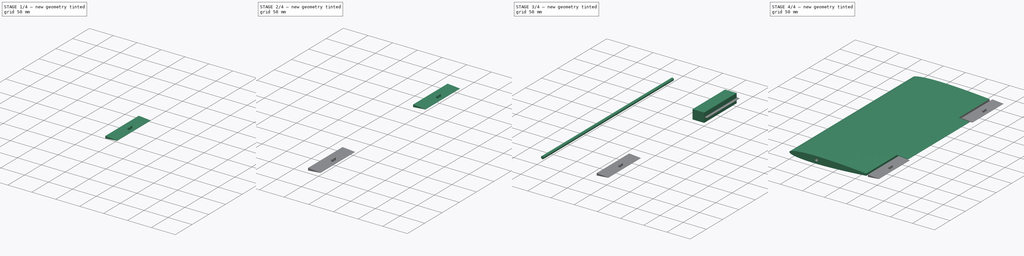
[diagram: build sequence overview — one tinted view per stage of 4, left to right]
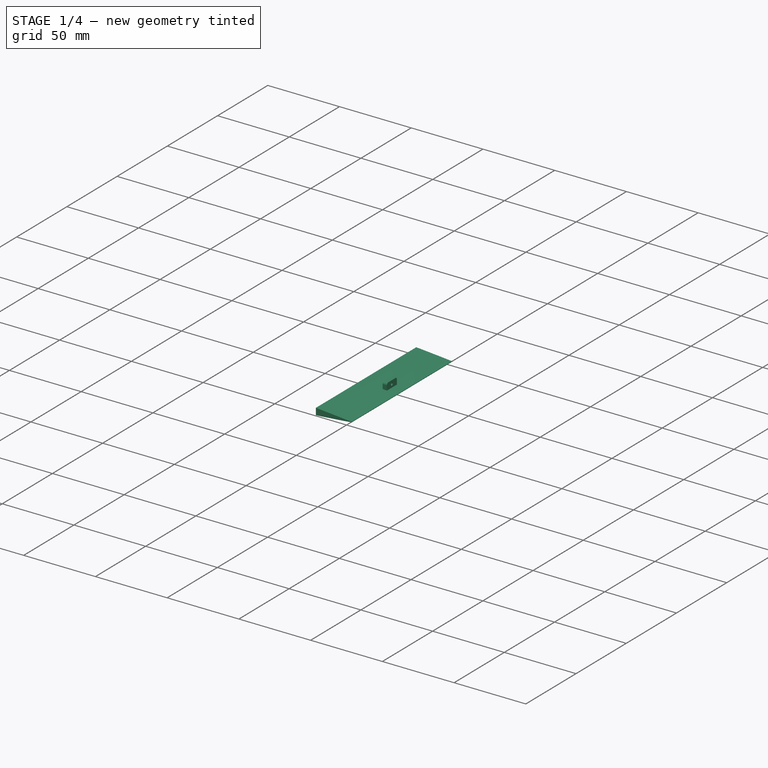
[diagram: stage 1 of 4 — iso view after this stage's code; geometry added in this stage tinted green]
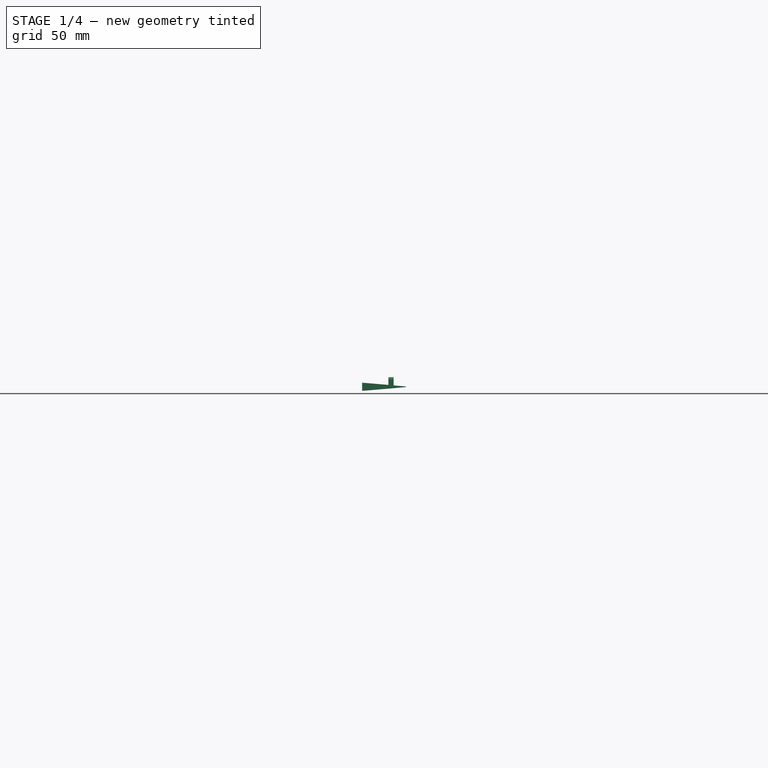
[diagram: stage 1 of 4 — front view after this stage's code; geometry added in this stage tinted green]
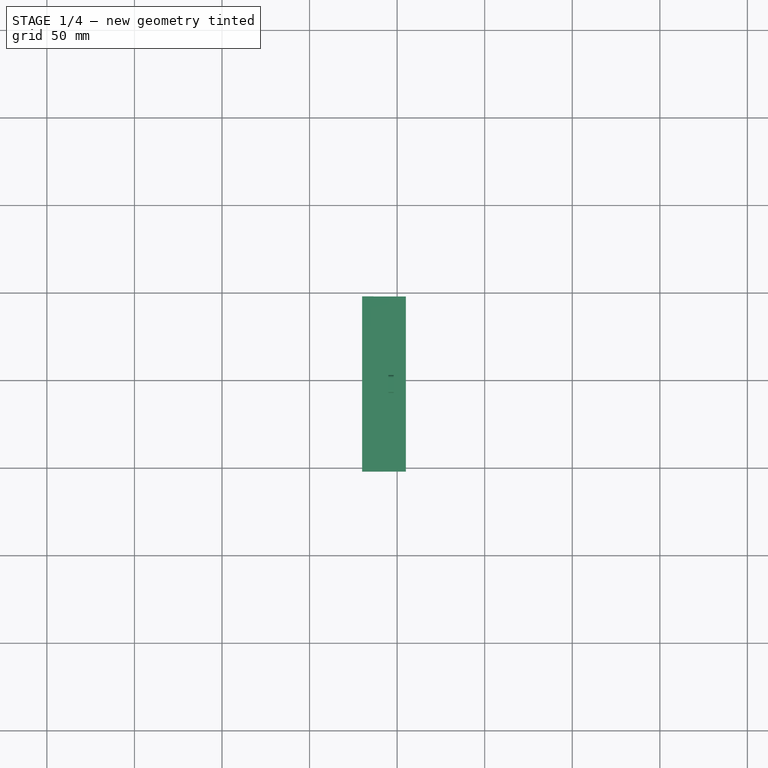
[diagram: stage 1 of 4 — top view after this stage's code; geometry added in this stage tinted green]
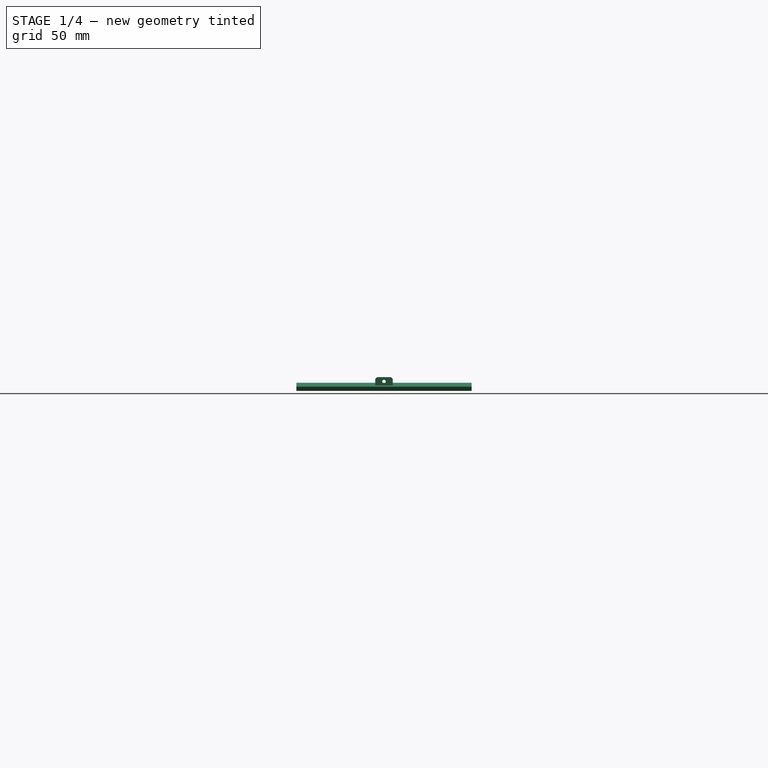
[diagram: stage 1 of 4 — right view after this stage's code; geometry added in this stage tinted green]
FCSTD DOCUMENT  (FreeCAD 1.0R39319 (Git))
Label: elevator
License: All rights reserved
LicenseURL: https://en.wikipedia.org/wiki/All_rights_reserved
objects: Sketcher::SketchObject×13, PartDesign::Body×8, PartDesign::Pad×4, PartDesign::AdditiveLoft×3, PartDesign::Boolean×3, PartDesign::AdditiveCylinder×1
note: 64 computed .brp shape members not serialized (recipe doc carries the construction recipe); baked Part::Feature solids carry a one-line shape summary decoded from their .brp

FEATURE [Sketcher::SketchObject] Sketch009
  ArcFitTolerance = 1e-06
  FullyConstrained = false
  MakeInternals = false
  Placement = pos=(5,-2,0) rot=(1,0,0;1.5708rad)
  sketch-geometry (10):
    g0: LineSegment StartX=200 StartY=0.168 StartZ=0 EndX=190 EndY=1.074 EndZ=0
    g1: LineSegment StartX=190 StartY=1.074 StartZ=0 EndX=180 EndY=1.93 EndZ=0
    g2: LineSegment StartX=180 StartY=-1.93 StartZ=0 EndX=190 EndY=-1.074 EndZ=0
    g3: LineSegment StartX=190 StartY=-1.074 StartZ=0 EndX=200 EndY=-0.168 EndZ=0
    g4: LineSegment StartX=200 StartY=-0.168 StartZ=0 EndX=200 EndY=0.168 EndZ=0
    g5: GeomPoint X=175 Y=-2.322 Z=0
    g6: GeomPoint X=175 Y=2.322 Z=0
    g7: LineSegment StartX=175 StartY=2.322 StartZ=0 EndX=175 EndY=-2.322 EndZ=0
    g8: LineSegment StartX=180 StartY=-1.93 StartZ=0 EndX=175 EndY=-2.322 EndZ=0
    g9: LineSegment StartX=180 StartY=1.93 StartZ=0 EndX=175 EndY=2.322 EndZ=0
  constraints (12):
    c: Coincident(g0,g1)
    c: Coincident(g2,g3)
    c: Coincident(g3,g4)
    c: Vertical(g4)
    c: Coincident(g4,g0)
    c: Coincident(g7,g6)
    c: Coincident(g7,g5)
    c: Vertical(g7)
    c: Coincident(g8,g2)
    c: Coincident(g8,g5)
    c: Coincident(g9,g1)
    c: Coincident(g9,g6)
FEATURE [Sketcher::SketchObject] Sketch010
  ArcFitTolerance = 1e-06
  FullyConstrained = false
  MakeInternals = false
  Placement = pos=(5,98,0) rot=(1,0,0;1.5708rad)
  sketch-geometry (10):
    g0: LineSegment StartX=200 StartY=0.168 StartZ=0 EndX=190 EndY=1.074 EndZ=0
    g1: LineSegment StartX=190 StartY=1.074 StartZ=0 EndX=180 EndY=1.93 EndZ=0
    g2: LineSegment StartX=180 StartY=-1.93 StartZ=0 EndX=190 EndY=-1.074 EndZ=0
    g3: LineSegment StartX=190 StartY=-1.074 StartZ=0 EndX=200 EndY=-0.168 EndZ=0
    g4: LineSegment StartX=200 StartY=-0.168 StartZ=0 EndX=200 EndY=0.168 EndZ=0
    g5: GeomPoint X=175 Y=-2.322 Z=0
    g6: GeomPoint X=175 Y=2.322 Z=0
    g7: LineSegment StartX=175 StartY=2.322 StartZ=0 EndX=175 EndY=-2.322 EndZ=0
    g8: LineSegment StartX=180 StartY=-1.93 StartZ=0 EndX=175 EndY=-2.322 EndZ=0
    g9: LineSegment StartX=180 StartY=1.93 StartZ=0 EndX=175 EndY=2.322 EndZ=0
  constraints (12):
    c: Coincident(g0,g1)
    c: Coincident(g2,g3)
    c: Coincident(g3,g4)
    c: Vertical(g4)
    c: Coincident(g4,g0)
    c: Coincident(g7,g6)
    c: Coincident(g7,g5)
    c: Vertical(g7)
    c: Coincident(g8,g2)
    c: Coincident(g8,g5)
    c: Coincident(g9,g1)
    c: Coincident(g9,g6)
FEATURE [PartDesign::AdditiveLoft] AdditiveLoft002
  Closed = false
  Placement = pos=(5,98,0) rot=(1,0,0;1.5708rad)
  Profile = -> Sketch010
  Refine = true
  Ruled = false
  Sections = -> [Sketch009]
  Suppressed = false
FEATURE [Sketcher::SketchObject] Sketch011
  ArcFitTolerance = 1e-06
  AttachmentSupport = -> [YZ_Plane006]
  FullyConstrained = false
  MakeInternals = false
  MapMode = 5
  Placement = pos=(0,0,0) rot=(0.57735,0.57735,0.57735;2.0944rad)
  sketch-geometry (10):
    g0: LineSegment StartX=-5 StartY=-2.5 StartZ=0 EndX=5 EndY=-2.5 EndZ=0
    g1: LineSegment StartX=5 StartY=-2.5 StartZ=0 EndX=5 EndY=0.996815 EndZ=0
    g2: LineSegment StartX=3.49681 StartY=2.5 StartZ=0 EndX=-3.4855 EndY=2.5 EndZ=0
    g3: LineSegment StartX=-5 StartY=0.985503 StartZ=0 EndX=-5 EndY=-2.5 EndZ=0
    g4: GeomPoint [constr] X=0 Y=0 Z=0
    g5: ArcOfCircle CenterX=-3.4855 CenterY=0.985502 CenterZ=0 NormalX=0 NormalY=0 NormalZ=1 AngleXU=0 Radius=1.5145 StartAngle=1.5708 EndAngle=3.14159
    g6: GeomPoint [constr] X=-5 Y=2.5 Z=0
    g7: ArcOfCircle CenterX=3.49681 CenterY=0.996815 CenterZ=0 NormalX=0 NormalY=0 NormalZ=1 AngleXU=0 Radius=1.50319 StartAngle=0 EndAngle=1.5708
    g8: GeomPoint [constr] X=5 Y=2.5 Z=0
    g9: Circle CenterX=0 CenterY=0 CenterZ=0 NormalX=0 NormalY=0 NormalZ=1 AngleXU=0 Radius=1
  constraints (20):
    c: Coincident(g0,g1)
    c: Coincident(g3,g0)
    c: Horizontal(g0)
    c: Horizontal(g2)
    c: Vertical(g1)
    c: Vertical(g3)
    c: Symmetric(g8,g0,g4)
    c: Distance(g1,g3) = 10
    c: Distance(g0,g6) = 5
    c: Coincident(g4,g-1)
    c: PointOnObject(g6,g2)
    c: PointOnObject(g6,g3)
    c: Tangent(g2,g5) = -1.5708
    c: Tangent(g3,g5) = -1.5708
    c: PointOnObject(g8,g1)
    c: PointOnObject(g8,g2)
    c: Tangent(g1,g7) = -1.5708
    c: Tangent(g2,g7) = -1.5708
    c: Diameter(g9) = 2
    c: Coincident(g9,g4)
FEATURE [PartDesign::Pad] Pad002
  Direction = (1,0,0)
  Length = 3
  Length2 = 10
  Placement = pos=(0,0,0) rot=(1,1,1;2.0944rad)
  Profile = -> Sketch011
  ReferenceAxis = -> Sketch011 [N_Axis]
  Refine = true
  Suppressed = false
  Type = 0
FEATURE [PartDesign::Body] Body004  label="trim_right"
  AllowCompound = false
  Group = -> [Sketch007,Sketch008,AdditiveLoft001,Boolean001]
  Origin = -> Origin004
  Tip = -> Boolean001
FEATURE [PartDesign::Boolean] Boolean002
  BaseFeature = -> AdditiveLoft002
  Group = -> [Body006]
  Refine = true
  Suppressed = false
  Type = 0
  UsePlacement = true
FEATURE [PartDesign::Body] Body005  label="trim_left"
  AllowCompound = false
  Group = -> [Sketch009,Sketch010,AdditiveLoft002,Boolean002]
  Origin = -> Origin005
  Tip = -> Boolean002
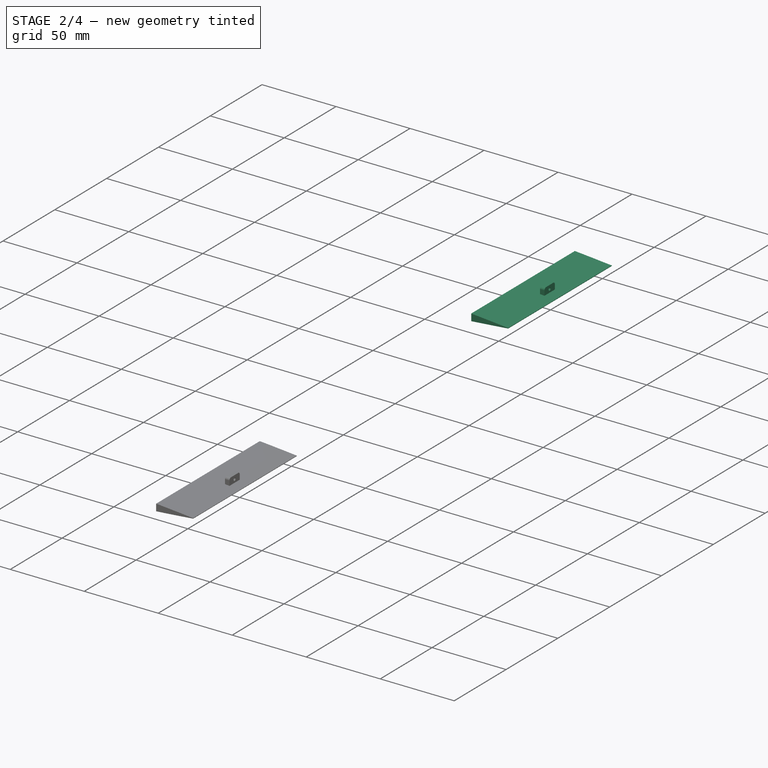
[diagram: stage 2 of 4 — iso view after this stage's code; geometry added in this stage tinted green]
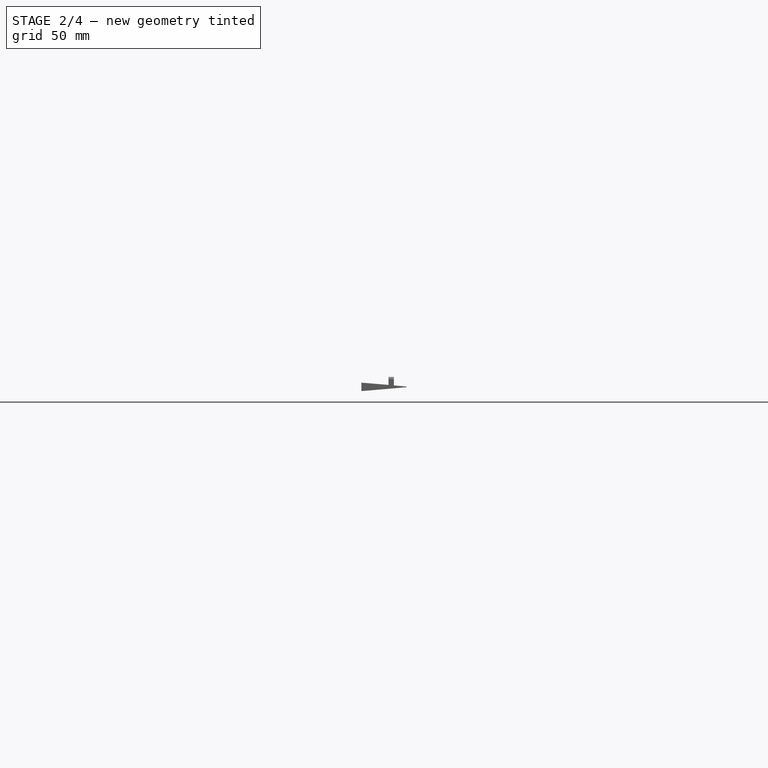
[diagram: stage 2 of 4 — front view after this stage's code; geometry added in this stage tinted green]
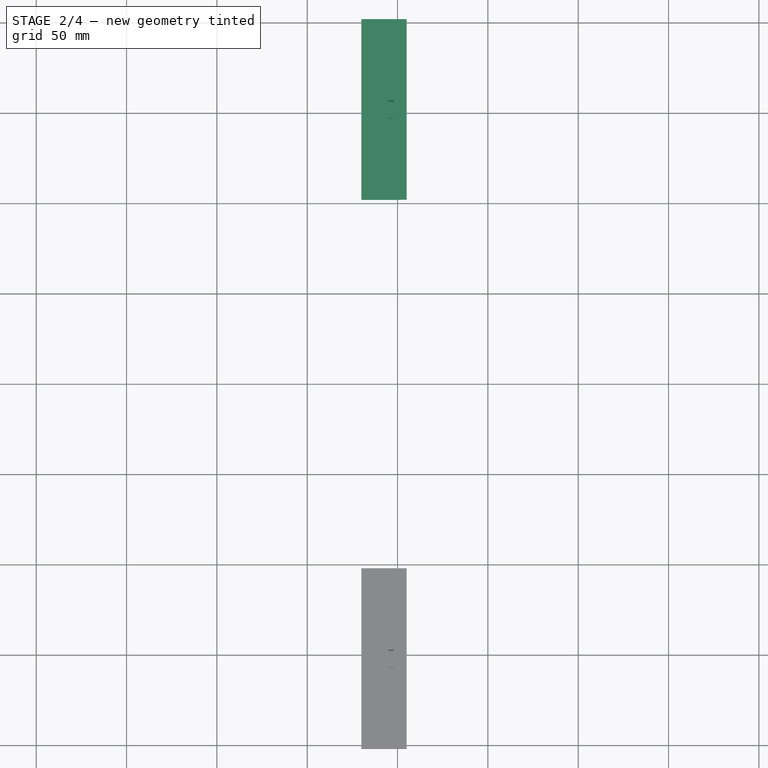
[diagram: stage 2 of 4 — top view after this stage's code; geometry added in this stage tinted green]
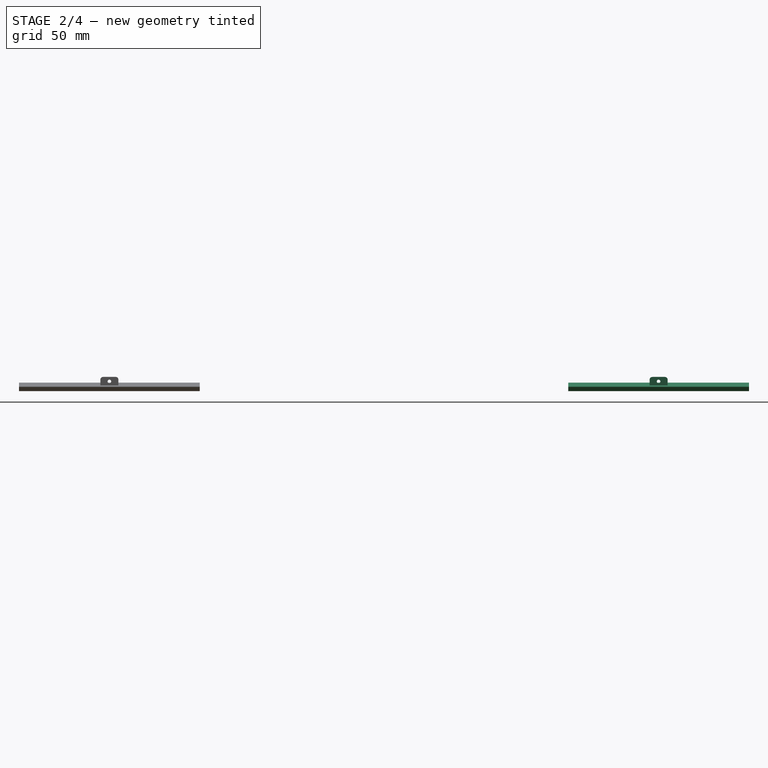
[diagram: stage 2 of 4 — right view after this stage's code; geometry added in this stage tinted green]
FEATURE [PartDesign::Body] Body  label="Stab"
  AllowCompound = false
  Group = -> [Sketch,Sketch001,Sketch002,Sketch003,Sketch004,AdditiveLoft,Boolean]
  Origin = -> Origin
  Tip = -> Boolean
FEATURE [Sketcher::SketchObject] Sketch007
  ArcFitTolerance = 1e-06
  FullyConstrained = false
  MakeInternals = false
  Placement = pos=(5,302,0) rot=(1,0,0;1.5708rad)
  sketch-geometry (10):
    g0: LineSegment StartX=200 StartY=0.168 StartZ=0 EndX=190 EndY=1.074 EndZ=0
    g1: LineSegment StartX=190 StartY=1.074 StartZ=0 EndX=180 EndY=1.93 EndZ=0
    g2: LineSegment StartX=180 StartY=-1.93 StartZ=0 EndX=190 EndY=-1.074 EndZ=0
    g3: LineSegment StartX=190 StartY=-1.074 StartZ=0 EndX=200 EndY=-0.168 EndZ=0
    g4: LineSegment StartX=200 StartY=-0.168 StartZ=0 EndX=200 EndY=0.168 EndZ=0
    g5: GeomPoint X=175 Y=-2.322 Z=0
    g6: GeomPoint X=175 Y=2.322 Z=0
    g7: LineSegment StartX=175 StartY=2.322 StartZ=0 EndX=175 EndY=-2.322 EndZ=0
    g8: LineSegment StartX=180 StartY=-1.93 StartZ=0 EndX=175 EndY=-2.322 EndZ=0
    g9: LineSegment StartX=180 StartY=1.93 StartZ=0 EndX=175 EndY=2.322 EndZ=0
  constraints (12):
    c: Coincident(g0,g1)
    c: Coincident(g2,g3)
    c: Coincident(g3,g4)
    c: Vertical(g4)
    c: Coincident(g4,g0)
    c: Coincident(g7,g6)
    c: Coincident(g7,g5)
    c: Vertical(g7)
    c: Coincident(g8,g2)
    c: Coincident(g8,g5)
    c: Coincident(g9,g1)
    c: Coincident(g9,g6)
FEATURE [Sketcher::SketchObject] Sketch008
  ArcFitTolerance = 1e-06
  FullyConstrained = false
  MakeInternals = false
  Placement = pos=(5,402,0) rot=(1,0,0;1.5708rad)
  sketch-geometry (10):
    g0: LineSegment StartX=200 StartY=0.168 StartZ=0 EndX=190 EndY=1.074 EndZ=0
    g1: LineSegment StartX=190 StartY=1.074 StartZ=0 EndX=180 EndY=1.93 EndZ=0
    g2: LineSegment StartX=180 StartY=-1.93 StartZ=0 EndX=190 EndY=-1.074 EndZ=0
    g3: LineSegment StartX=190 StartY=-1.074 StartZ=0 EndX=200 EndY=-0.168 EndZ=0
    g4: LineSegment StartX=200 StartY=-0.168 StartZ=0 EndX=200 EndY=0.168 EndZ=0
    g5: GeomPoint X=175 Y=-2.322 Z=0
    g6: GeomPoint X=175 Y=2.322 Z=0
    g7: LineSegment StartX=175 StartY=2.322 StartZ=0 EndX=175 EndY=-2.322 EndZ=0
    g8: LineSegment StartX=180 StartY=-1.93 StartZ=0 EndX=175 EndY=-2.322 EndZ=0
    g9: LineSegment StartX=180 StartY=1.93 StartZ=0 EndX=175 EndY=2.322 EndZ=0
  constraints (12):
    c: Coincident(g0,g1)
    c: Coincident(g2,g3)
    c: Coincident(g3,g4)
    c: Vertical(g4)
    c: Coincident(g4,g0)
    c: Coincident(g7,g6)
    c: Coincident(g7,g5)
    c: Vertical(g7)
    c: Coincident(g8,g2)
    c: Coincident(g8,g5)
    c: Coincident(g9,g1)
    c: Coincident(g9,g6)
FEATURE [PartDesign::AdditiveLoft] AdditiveLoft001
  Closed = false
  Placement = pos=(5,302,0) rot=(1,0,0;1.5708rad)
  Profile = -> Sketch007
  Refine = true
  Ruled = false
  Sections = -> [Sketch008]
  Suppressed = false
FEATURE [PartDesign::Body] Body006
  AllowCompound = false
  Group = -> [Sketch011,Pad002]
  Origin = -> Origin006
  Placement = pos=(195,48,3) rot=(0,0,1;0rad)
  Tip = -> Pad002
FEATURE [Sketcher::SketchObject] Sketch012
  ArcFitTolerance = 1e-06
  AttachmentSupport = -> [YZ_Plane007]
  FullyConstrained = false
  MakeInternals = false
  MapMode = 5
  Placement = pos=(0,0,0) rot=(0.57735,0.57735,0.57735;2.0944rad)
  sketch-geometry (10):
    g0: LineSegment StartX=-5 StartY=-2.5 StartZ=0 EndX=5 EndY=-2.5 EndZ=0
    g1: LineSegment StartX=5 StartY=-2.5 StartZ=0 EndX=5 EndY=0.996815 EndZ=0
    g2: LineSegment StartX=3.49681 StartY=2.5 StartZ=0 EndX=-3.4855 EndY=2.5 EndZ=0
    g3: LineSegment StartX=-5 StartY=0.985503 StartZ=0 EndX=-5 EndY=-2.5 EndZ=0
    g4: GeomPoint [constr] X=0 Y=0 Z=0
    g5: ArcOfCircle CenterX=-3.4855 CenterY=0.985502 CenterZ=0 NormalX=0 NormalY=0 NormalZ=1 AngleXU=0 Radius=1.5145 StartAngle=1.5708 EndAngle=3.14159
    g6: GeomPoint [constr] X=-5 Y=2.5 Z=0
    g7: ArcOfCircle CenterX=3.49681 CenterY=0.996815 CenterZ=0 NormalX=0 NormalY=0 NormalZ=1 AngleXU=0 Radius=1.50319 StartAngle=0 EndAngle=1.5708
    g8: GeomPoint [constr] X=5 Y=2.5 Z=0
    g9: Circle CenterX=0 CenterY=0 CenterZ=0 NormalX=0 NormalY=0 NormalZ=1 AngleXU=0 Radius=1
  constraints (20):
    c: Coincident(g0,g1)
    c: Coincident(g3,g0)
    c: Horizontal(g0)
    c: Horizontal(g2)
    c: Vertical(g1)
    c: Vertical(g3)
    c: Symmetric(g8,g0,g4)
    c: Distance(g1,g3) = 10
    c: Distance(g0,g6) = 5
    c: Coincident(g4,g-1)
    c: PointOnObject(g6,g2)
    c: PointOnObject(g6,g3)
    c: Tangent(g2,g5) = -1.5708
    c: Tangent(g3,g5) = -1.5708
    c: PointOnObject(g8,g1)
    c: PointOnObject(g8,g2)
    c: Tangent(g1,g7) = -1.5708
    c: Tangent(g2,g7) = -1.5708
    c: Diameter(g9) = 2
    c: Coincident(g9,g4)
FEATURE [PartDesign::Pad] Pad003
  Direction = (1,0,0)
  Length = 3
  Length2 = 10
  Placement = pos=(0,0,0) rot=(1,1,1;2.0944rad)
  Profile = -> Sketch012
  ReferenceAxis = -> Sketch012 [N_Axis]
  Refine = true
  Suppressed = false
  Type = 0
FEATURE [PartDesign::Body] Body007
  AllowCompound = false
  Group = -> [Sketch012,Pad003]
  Origin = -> Origin007
  Placement = pos=(195,352,3) rot=(0,0,1;0rad)
  Tip = -> Pad003
FEATURE [PartDesign::Boolean] Boolean001
  BaseFeature = -> AdditiveLoft001
  Group = -> [Body007]
  Refine = true
  Suppressed = false
  Type = 0
  UsePlacement = true
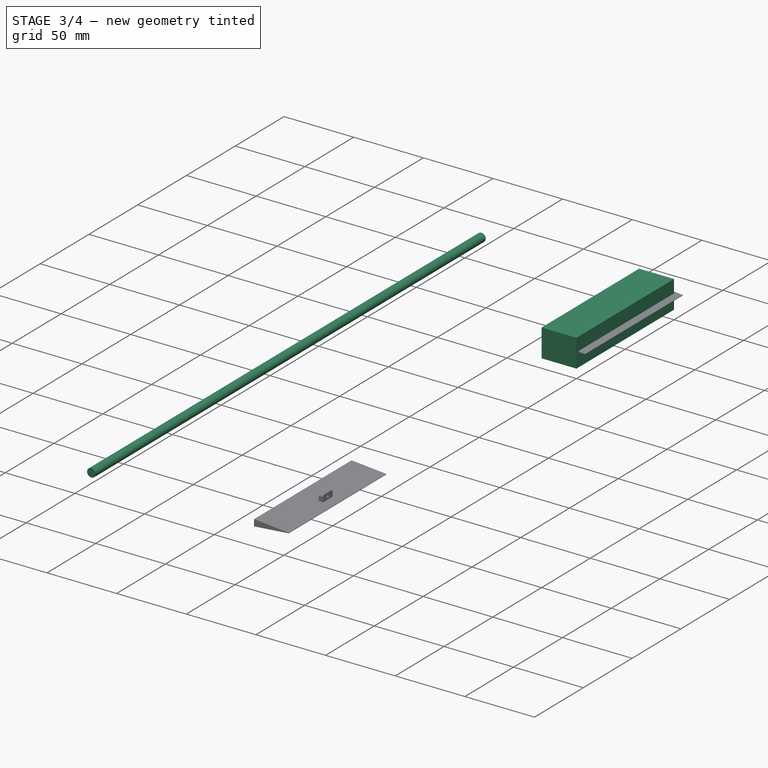
[diagram: stage 3 of 4 — iso view after this stage's code; geometry added in this stage tinted green]
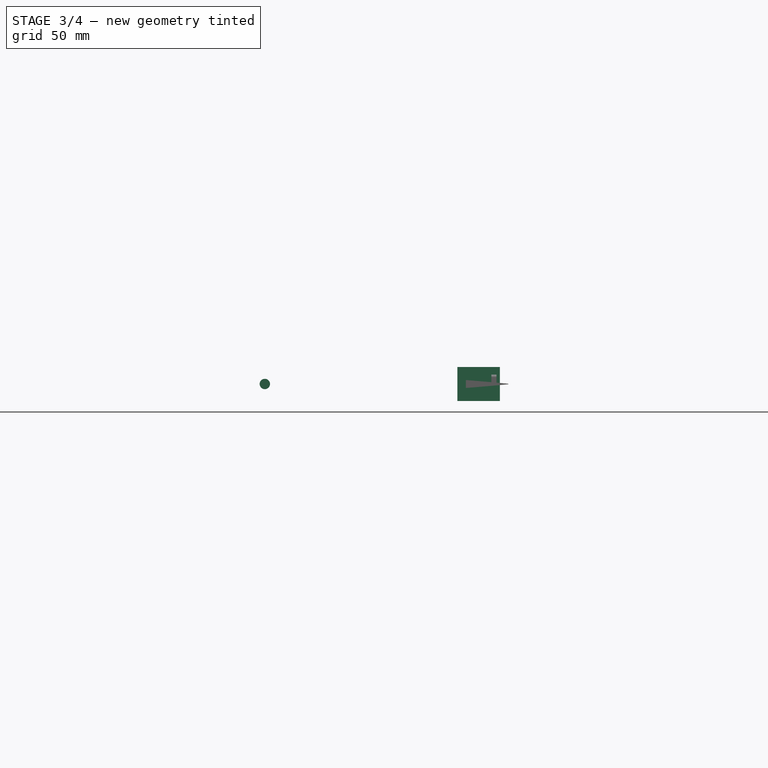
[diagram: stage 3 of 4 — front view after this stage's code; geometry added in this stage tinted green]
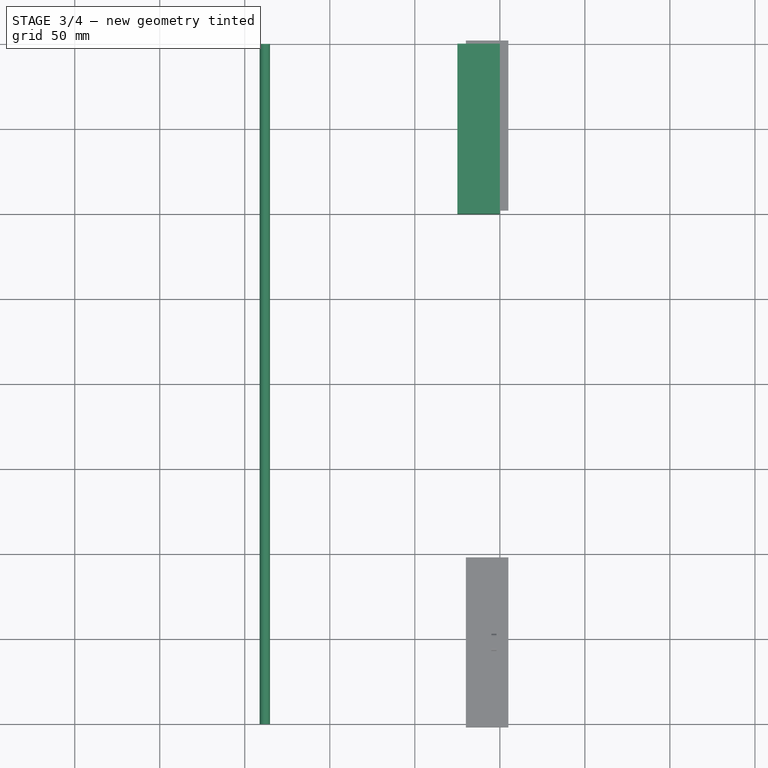
[diagram: stage 3 of 4 — top view after this stage's code; geometry added in this stage tinted green]
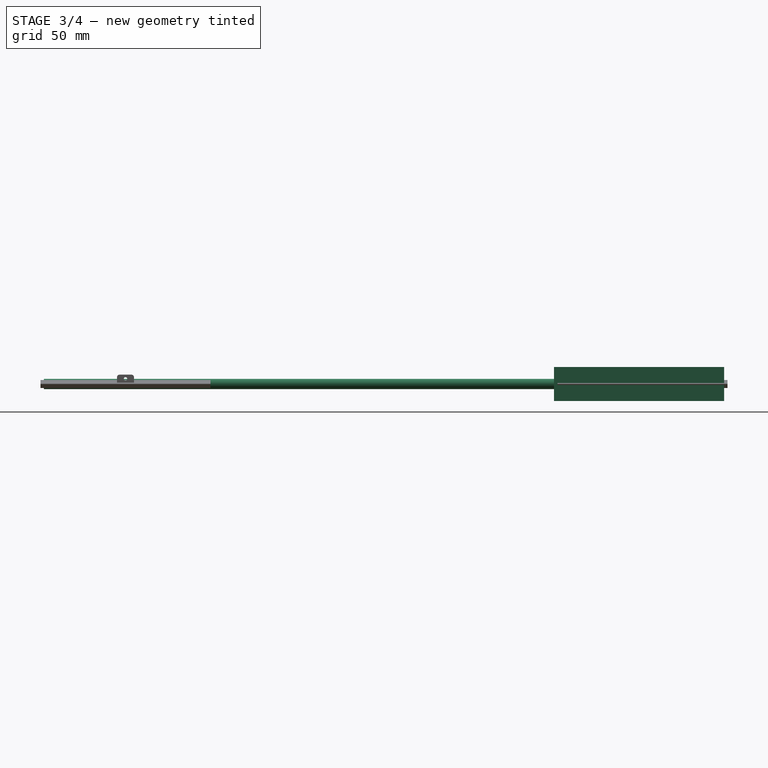
[diagram: stage 3 of 4 — right view after this stage's code; geometry added in this stage tinted green]
FEATURE [PartDesign::Body] Body001  label="Body"
  AllowCompound = false
  Group = -> [Sketch005,Pad]
  Origin = -> Origin001
  Tip = -> Pad
FEATURE [Sketcher::SketchObject] Sketch006
  ArcFitTolerance = 1e-06
  AttachmentOffset = pos=(0,300,0) rot=(0,0,1;0rad)
  AttachmentSupport = -> [XY_Plane002]
  FullyConstrained = false
  MakeInternals = false
  MapMode = 5
  Placement = pos=(0,300,0) rot=(0,0,1;0rad)
  sketch-geometry (4):
    g0: LineSegment StartX=200 StartY=0 StartZ=0 EndX=200 EndY=100 EndZ=0
    g1: LineSegment StartX=200 StartY=100 StartZ=0 EndX=175 EndY=100 EndZ=0
    g2: LineSegment StartX=175 StartY=100 StartZ=0 EndX=175 EndY=0 EndZ=0
    g3: LineSegment StartX=175 StartY=0 StartZ=0 EndX=200 EndY=0 EndZ=0
  constraints (10):
    c: Coincident(g0,g1)
    c: Coincident(g1,g2)
    c: Coincident(g2,g3)
    c: Coincident(g3,g0)
    c: Vertical(g0)
    c: Vertical(g2)
    c: Horizontal(g1)
    c: Horizontal(g3)
    c: Distance(g0,g2) = 25
    c: Distance(g1,g3) = 100
FEATURE [PartDesign::Pad] Pad001
  Direction = (0,0,1)
  Length = 20
  Length2 = 10
  Midplane = true
  Profile = -> Sketch006
  ReferenceAxis = -> Sketch006 [N_Axis]
  Refine = true
  Suppressed = false
  Type = 0
FEATURE [PartDesign::Body] Body002
  AllowCompound = false
  Group = -> [Sketch006,Pad001]
  Origin = -> Origin002
  Tip = -> Pad001
FEATURE [PartDesign::AdditiveCylinder] Cylinder
  Angle = 360
  AttacherType = Attacher::AttachEngine3D
  AttachmentOffset = pos=(61.8,0,-400) rot=(0,0,1;0rad)
  AttachmentSupport = -> [XZ_Plane003]
  FirstAngle = 0
  Height = 400
  MapMode = 5
  Placement = pos=(61.8,400,-8.88e-14) rot=(1,0,0;1.5708rad)
  Radius = 3.05
  Refine = true
  SecondAngle = 0
  Suppressed = false
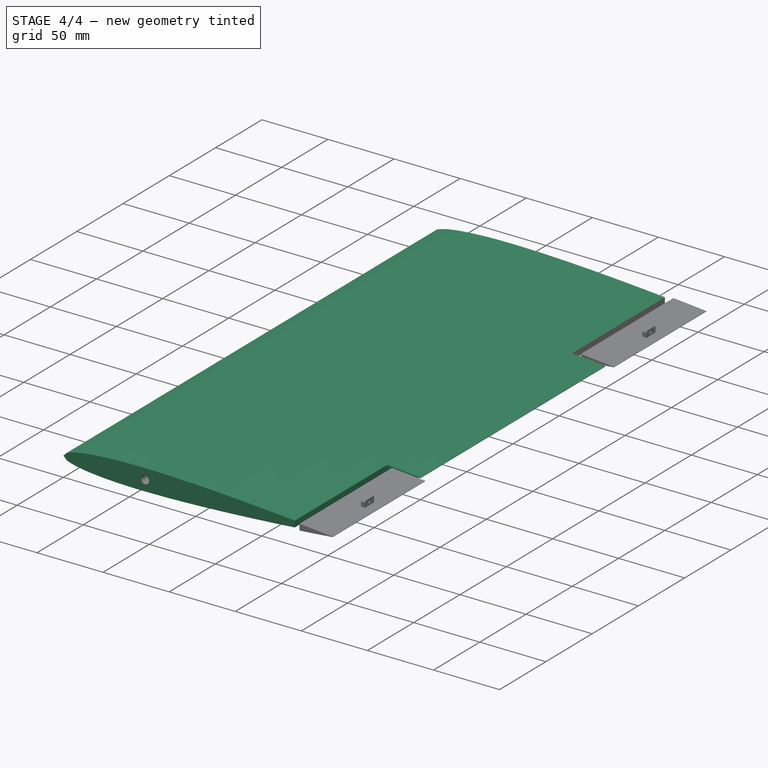
[diagram: stage 4 of 4 — iso view after this stage's code; geometry added in this stage tinted green]
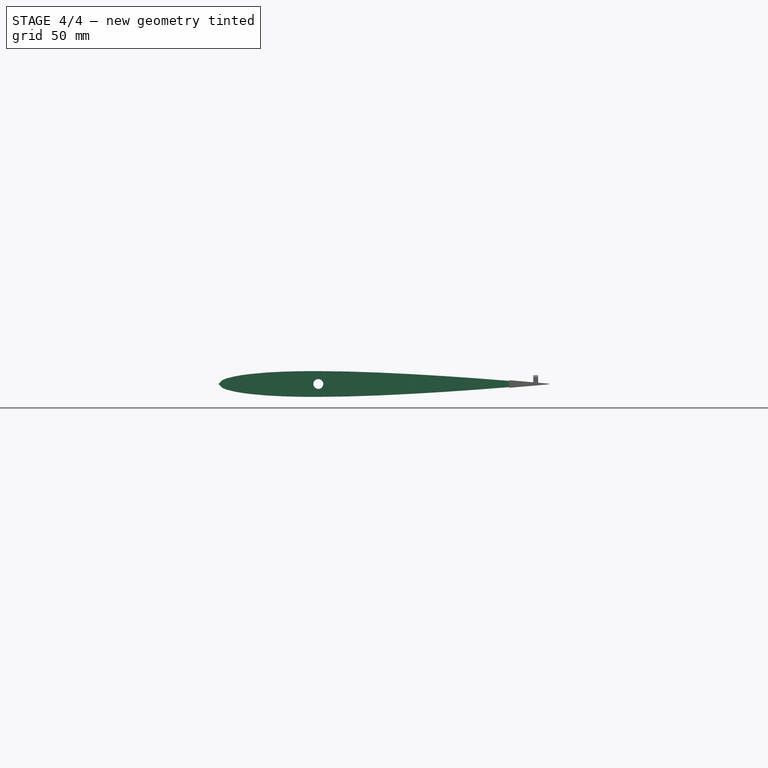
[diagram: stage 4 of 4 — front view after this stage's code; geometry added in this stage tinted green]
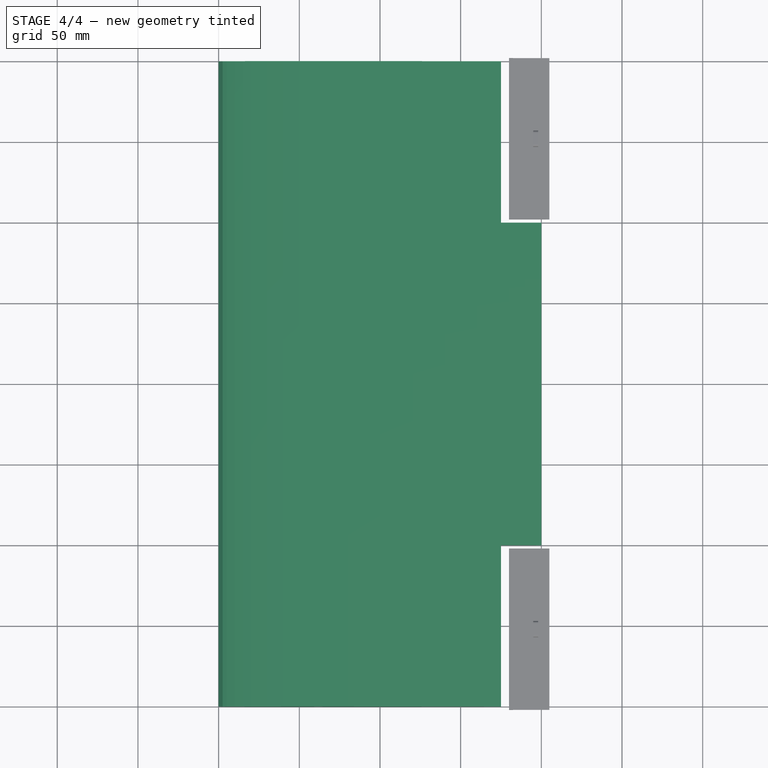
[diagram: stage 4 of 4 — top view after this stage's code; geometry added in this stage tinted green]
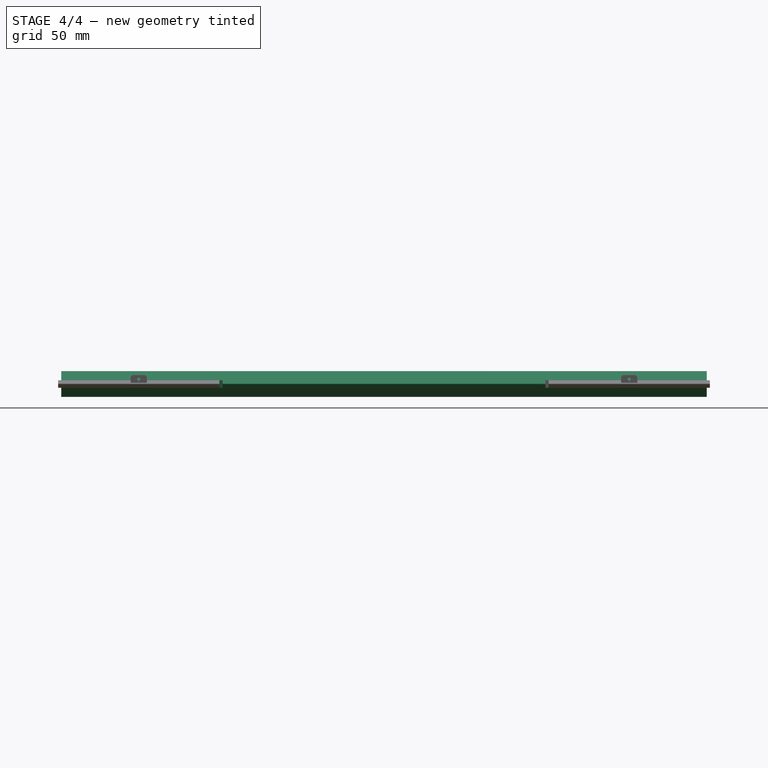
[diagram: stage 4 of 4 — right view after this stage's code; geometry added in this stage tinted green]
FEATURE [Sketcher::SketchObject] Sketch
  ArcFitTolerance = 1e-06
  FullyConstrained = false
  MakeInternals = false
  Placement = pos=(0,0,0) rot=(1,0,0;1.5708rad)
  sketch-geometry (35):
    g0: LineSegment StartX=200 StartY=0.168 StartZ=0 EndX=190 EndY=1.074 EndZ=0
    g1: LineSegment StartX=190 StartY=1.074 StartZ=0 EndX=180 EndY=1.93 EndZ=0
    g2: LineSegment StartX=180 StartY=1.93 StartZ=0 EndX=160 EndY=3.498 EndZ=0
    g3: LineSegment StartX=160 StartY=3.498 StartZ=0 EndX=140 EndY=4.886 EndZ=0
    g4: LineSegment StartX=140 StartY=4.886 StartZ=0 EndX=120 EndY=6.086 EndZ=0
    g5: LineSegment StartX=120 StartY=6.086 StartZ=0 EndX=100 EndY=7.058 EndZ=0
    g6: LineSegment StartX=100 StartY=7.058 StartZ=0 EndX=80 EndY=7.738 EndZ=0
    g7: LineSegment StartX=80 StartY=7.738 StartZ=0 EndX=60 EndY=8.002 EndZ=0
    g8: LineSegment StartX=60 StartY=8.002 StartZ=0 EndX=50 EndY=7.922 EndZ=0
    g9: LineSegment StartX=50 StartY=7.922 StartZ=0 EndX=40 EndY=7.65 EndZ=0
    g10: LineSegment StartX=40 StartY=7.65 StartZ=0 EndX=30 EndY=7.128 EndZ=0
    g11: LineSegment StartX=30 StartY=7.128 StartZ=0 EndX=20 EndY=6.242 EndZ=0
    g12: LineSegment StartX=20 StartY=6.242 StartZ=0 EndX=15 EndY=5.6 EndZ=0
    g13: LineSegment StartX=15 StartY=5.6 StartZ=0 EndX=10 EndY=4.738 EndZ=0
    g14: LineSegment StartX=10 StartY=4.738 StartZ=0 EndX=5 EndY=3.486 EndZ=0
    g15: LineSegment StartX=5 StartY=3.486 StartZ=0 EndX=2.5 EndY=2.526 EndZ=0
    g16: LineSegment StartX=2.5 StartY=2.526 StartZ=0 EndX=0 EndY=0 EndZ=0
    g17: LineSegment StartX=0 StartY=0 StartZ=0 EndX=2.5 EndY=-2.526 EndZ=0
    g18: LineSegment StartX=2.5 StartY=-2.526 StartZ=0 EndX=5 EndY=-3.486 EndZ=0
    g19: LineSegment StartX=5 StartY=-3.486 StartZ=0 EndX=10 EndY=-4.738 EndZ=0
    g20: LineSegment StartX=10 StartY=-4.738 StartZ=0 EndX=15 EndY=-5.6 EndZ=0
    g21: LineSegment StartX=15 StartY=-5.6 StartZ=0 EndX=20 EndY=-6.242 EndZ=0
    g22: LineSegment StartX=20 StartY=-6.242 StartZ=0 EndX=30 EndY=-7.128 EndZ=0
    g23: LineSegment StartX=30 StartY=-7.128 StartZ=0 EndX=40 EndY=-7.65 EndZ=0
    g24: LineSegment StartX=40 StartY=-7.65 StartZ=0 EndX=50 EndY=-7.922 EndZ=0
    g25: LineSegment StartX=50 StartY=-7.922 StartZ=0 EndX=60 EndY=-8.002 EndZ=0
    g26: LineSegment StartX=60 StartY=-8.002 StartZ=0 EndX=80 EndY=-7.738 EndZ=0
    g27: LineSegment StartX=80 StartY=-7.738 StartZ=0 EndX=100 EndY=-7.058 EndZ=0
    g28: LineSegment StartX=100 StartY=-7.058 StartZ=0 EndX=120 EndY=-6.086 EndZ=0
    g29: LineSegment StartX=120 StartY=-6.086 StartZ=0 EndX=140 EndY=-4.886 EndZ=0
    g30: LineSegment StartX=140 StartY=-4.886 StartZ=0 EndX=160 EndY=-3.498 EndZ=0
    g31: LineSegment StartX=160 StartY=-3.498 StartZ=0 EndX=180 EndY=-1.93 EndZ=0
    g32: LineSegment StartX=180 StartY=-1.93 StartZ=0 EndX=190 EndY=-1.074 EndZ=0
    g33: LineSegment StartX=190 StartY=-1.074 StartZ=0 EndX=200 EndY=-0.168 EndZ=0
    g34: LineSegment StartX=200 StartY=-0.168 StartZ=0 EndX=200 EndY=0.168 EndZ=0
  constraints (36):
    c: Coincident(g0,g1)
    c: Coincident(g1,g2)
    c: Coincident(g2,g3)
    c: Coincident(g3,g4)
    c: Coincident(g4,g5)
    c: Coincident(g5,g6)
    c: Coincident(g6,g7)
    c: Coincident(g7,g8)
    c: Coincident(g8,g9)
    c: Coincident(g9,g10)
    c: Coincident(g10,g11)
    c: Coincident(g11,g12)
    c: Coincident(g12,g13)
    c: Coincident(g13,g14)
    c: Coincident(g14,g15)
    c: Coincident(g15,g16)
    c: Coincident(g16,g17)
    c: Coincident(g17,g18)
    c: Coincident(g18,g19)
    c: Coincident(g19,g20)
    c: Coincident(g20,g21)
    c: Coincident(g21,g22)
    c: Coincident(g22,g23)
    c: Coincident(g23,g24)
    c: Coincident(g24,g25)
    c: Coincident(g25,g26)
    c: Coincident(g26,g27)
    c: Coincident(g27,g28)
    c: Coincident(g28,g29)
    c: Coincident(g29,g30)
    c: Coincident(g30,g31)
    c: Coincident(g31,g32)
    c: Coincident(g32,g33)
    c: Coincident(g33,g34)
    c: Vertical(g34)
    c: Coincident(g34,g0)
FEATURE [Sketcher::SketchObject] Sketch001
  ArcFitTolerance = 1e-06
  FullyConstrained = false
  MakeInternals = false
  Placement = pos=(0,100,0) rot=(1,0,0;1.5708rad)
  sketch-geometry (35):
    g0: LineSegment StartX=200 StartY=0.168 StartZ=0 EndX=190 EndY=1.074 EndZ=0
    g1: LineSegment StartX=190 StartY=1.074 StartZ=0 EndX=180 EndY=1.93 EndZ=0
    g2: LineSegment StartX=180 StartY=1.93 StartZ=0 EndX=160 EndY=3.498 EndZ=0
    g3: LineSegment StartX=160 StartY=3.498 StartZ=0 EndX=140 EndY=4.886 EndZ=0
    g4: LineSegment StartX=140 StartY=4.886 StartZ=0 EndX=120 EndY=6.086 EndZ=0
    g5: LineSegment StartX=120 StartY=6.086 StartZ=0 EndX=100 EndY=7.058 EndZ=0
    g6: LineSegment StartX=100 StartY=7.058 StartZ=0 EndX=80 EndY=7.738 EndZ=0
    g7: LineSegment StartX=80 StartY=7.738 StartZ=0 EndX=60 EndY=8.002 EndZ=0
    g8: LineSegment StartX=60 StartY=8.002 StartZ=0 EndX=50 EndY=7.922 EndZ=0
    g9: LineSegment StartX=50 StartY=7.922 StartZ=0 EndX=40 EndY=7.65 EndZ=0
    g10: LineSegment StartX=40 StartY=7.65 StartZ=0 EndX=30 EndY=7.128 EndZ=0
    g11: LineSegment StartX=30 StartY=7.128 StartZ=0 EndX=20 EndY=6.242 EndZ=0
    g12: LineSegment StartX=20 StartY=6.242 StartZ=0 EndX=15 EndY=5.6 EndZ=0
    g13: LineSegment StartX=15 StartY=5.6 StartZ=0 EndX=10 EndY=4.738 EndZ=0
    g14: LineSegment StartX=10 StartY=4.738 StartZ=0 EndX=5 EndY=3.486 EndZ=0
    g15: LineSegment StartX=5 StartY=3.486 StartZ=0 EndX=2.5 EndY=2.526 EndZ=0
    g16: LineSegment StartX=2.5 StartY=2.526 StartZ=0 EndX=0 EndY=0 EndZ=0
    g17: LineSegment StartX=0 StartY=0 StartZ=0 EndX=2.5 EndY=-2.526 EndZ=0
    g18: LineSegment StartX=2.5 StartY=-2.526 StartZ=0 EndX=5 EndY=-3.486 EndZ=0
    g19: LineSegment StartX=5 StartY=-3.486 StartZ=0 EndX=10 EndY=-4.738 EndZ=0
    g20: LineSegment StartX=10 StartY=-4.738 StartZ=0 EndX=15 EndY=-5.6 EndZ=0
    g21: LineSegment StartX=15 StartY=-5.6 StartZ=0 EndX=20 EndY=-6.242 EndZ=0
    g22: LineSegment StartX=20 StartY=-6.242 StartZ=0 EndX=30 EndY=-7.128 EndZ=0
    g23: LineSegment StartX=30 StartY=-7.128 StartZ=0 EndX=40 EndY=-7.65 EndZ=0
    g24: LineSegment StartX=40 StartY=-7.65 StartZ=0 EndX=50 EndY=-7.922 EndZ=0
    g25: LineSegment StartX=50 StartY=-7.922 StartZ=0 EndX=60 EndY=-8.002 EndZ=0
    g26: LineSegment StartX=60 StartY=-8.002 StartZ=0 EndX=80 EndY=-7.738 EndZ=0
    g27: LineSegment StartX=80 StartY=-7.738 StartZ=0 EndX=100 EndY=-7.058 EndZ=0
    g28: LineSegment StartX=100 StartY=-7.058 StartZ=0 EndX=120 EndY=-6.086 EndZ=0
    g29: LineSegment StartX=120 StartY=-6.086 StartZ=0 EndX=140 EndY=-4.886 EndZ=0
    g30: LineSegment StartX=140 StartY=-4.886 StartZ=0 EndX=160 EndY=-3.498 EndZ=0
    g31: LineSegment StartX=160 StartY=-3.498 StartZ=0 EndX=180 EndY=-1.93 EndZ=0
    g32: LineSegment StartX=180 StartY=-1.93 StartZ=0 EndX=190 EndY=-1.074 EndZ=0
    g33: LineSegment StartX=190 StartY=-1.074 StartZ=0 EndX=200 EndY=-0.168 EndZ=0
    g34: LineSegment StartX=200 StartY=-0.168 StartZ=0 EndX=200 EndY=0.168 EndZ=0
  constraints (36):
    c: Coincident(g0,g1)
    c: Coincident(g1,g2)
    c: Coincident(g2,g3)
    c: Coincident(g3,g4)
    c: Coincident(g4,g5)
    c: Coincident(g5,g6)
    c: Coincident(g6,g7)
    c: Coincident(g7,g8)
    c: Coincident(g8,g9)
    c: Coincident(g9,g10)
    c: Coincident(g10,g11)
    c: Coincident(g11,g12)
    c: Coincident(g12,g13)
    c: Coincident(g13,g14)
    c: Coincident(g14,g15)
    c: Coincident(g15,g16)
    c: Coincident(g16,g17)
    c: Coincident(g17,g18)
    c: Coincident(g18,g19)
    c: Coincident(g19,g20)
    c: Coincident(g20,g21)
    c: Coincident(g21,g22)
    c: Coincident(g22,g23)
    c: Coincident(g23,g24)
    c: Coincident(g24,g25)
    c: Coincident(g25,g26)
    c: Coincident(g26,g27)
    c: Coincident(g27,g28)
    c: Coincident(g28,g29)
    c: Coincident(g29,g30)
    c: Coincident(g30,g31)
    c: Coincident(g31,g32)
    c: Coincident(g32,g33)
    c: Coincident(g33,g34)
    c: Vertical(g34)
    c: Coincident(g34,g0)
FEATURE [Sketcher::SketchObject] Sketch002
  ArcFitTolerance = 1e-06
  FullyConstrained = false
  MakeInternals = false
  Placement = pos=(0,200,0) rot=(1,0,0;1.5708rad)
  sketch-geometry (35):
    g0: LineSegment StartX=200 StartY=0.168 StartZ=0 EndX=190 EndY=1.074 EndZ=0
    g1: LineSegment StartX=190 StartY=1.074 StartZ=0 EndX=180 EndY=1.93 EndZ=0
    g2: LineSegment StartX=180 StartY=1.93 StartZ=0 EndX=160 EndY=3.498 EndZ=0
    g3: LineSegment StartX=160 StartY=3.498 StartZ=0 EndX=140 EndY=4.886 EndZ=0
    g4: LineSegment StartX=140 StartY=4.886 StartZ=0 EndX=120 EndY=6.086 EndZ=0
    g5: LineSegment StartX=120 StartY=6.086 StartZ=0 EndX=100 EndY=7.058 EndZ=0
    g6: LineSegment StartX=100 StartY=7.058 StartZ=0 EndX=80 EndY=7.738 EndZ=0
    g7: LineSegment StartX=80 StartY=7.738 StartZ=0 EndX=60 EndY=8.002 EndZ=0
    g8: LineSegment StartX=60 StartY=8.002 StartZ=0 EndX=50 EndY=7.922 EndZ=0
    g9: LineSegment StartX=50 StartY=7.922 StartZ=0 EndX=40 EndY=7.65 EndZ=0
    g10: LineSegment StartX=40 StartY=7.65 StartZ=0 EndX=30 EndY=7.128 EndZ=0
    g11: LineSegment StartX=30 StartY=7.128 StartZ=0 EndX=20 EndY=6.242 EndZ=0
    g12: LineSegment StartX=20 StartY=6.242 StartZ=0 EndX=15 EndY=5.6 EndZ=0
    g13: LineSegment StartX=15 StartY=5.6 StartZ=0 EndX=10 EndY=4.738 EndZ=0
    g14: LineSegment StartX=10 StartY=4.738 StartZ=0 EndX=5 EndY=3.486 EndZ=0
    g15: LineSegment StartX=5 StartY=3.486 StartZ=0 EndX=2.5 EndY=2.526 EndZ=0
    g16: LineSegment StartX=2.5 StartY=2.526 StartZ=0 EndX=0 EndY=0 EndZ=0
    g17: LineSegment StartX=0 StartY=0 StartZ=0 EndX=2.5 EndY=-2.526 EndZ=0
    g18: LineSegment StartX=2.5 StartY=-2.526 StartZ=0 EndX=5 EndY=-3.486 EndZ=0
    g19: LineSegment StartX=5 StartY=-3.486 StartZ=0 EndX=10 EndY=-4.738 EndZ=0
    g20: LineSegment StartX=10 StartY=-4.738 StartZ=0 EndX=15 EndY=-5.6 EndZ=0
    g21: LineSegment StartX=15 StartY=-5.6 StartZ=0 EndX=20 EndY=-6.242 EndZ=0
    g22: LineSegment StartX=20 StartY=-6.242 StartZ=0 EndX=30 EndY=-7.128 EndZ=0
    g23: LineSegment StartX=30 StartY=-7.128 StartZ=0 EndX=40 EndY=-7.65 EndZ=0
    g24: LineSegment StartX=40 StartY=-7.65 StartZ=0 EndX=50 EndY=-7.922 EndZ=0
    g25: LineSegment StartX=50 StartY=-7.922 StartZ=0 EndX=60 EndY=-8.002 EndZ=0
    g26: LineSegment StartX=60 StartY=-8.002 StartZ=0 EndX=80 EndY=-7.738 EndZ=0
    g27: LineSegment StartX=80 StartY=-7.738 StartZ=0 EndX=100 EndY=-7.058 EndZ=0
    g28: LineSegment StartX=100 StartY=-7.058 StartZ=0 EndX=120 EndY=-6.086 EndZ=0
    g29: LineSegment StartX=120 StartY=-6.086 StartZ=0 EndX=140 EndY=-4.886 EndZ=0
    g30: LineSegment StartX=140 StartY=-4.886 StartZ=0 EndX=160 EndY=-3.498 EndZ=0
    g31: LineSegment StartX=160 StartY=-3.498 StartZ=0 EndX=180 EndY=-1.93 EndZ=0
    g32: LineSegment StartX=180 StartY=-1.93 StartZ=0 EndX=190 EndY=-1.074 EndZ=0
    g33: LineSegment StartX=190 StartY=-1.074 StartZ=0 EndX=200 EndY=-0.168 EndZ=0
    g34: LineSegment StartX=200 StartY=-0.168 StartZ=0 EndX=200 EndY=0.168 EndZ=0
  constraints (36):
    c: Coincident(g0,g1)
    c: Coincident(g1,g2)
    c: Coincident(g2,g3)
    c: Coincident(g3,g4)
    c: Coincident(g4,g5)
    c: Coincident(g5,g6)
    c: Coincident(g6,g7)
    c: Coincident(g7,g8)
    c: Coincident(g8,g9)
    c: Coincident(g9,g10)
    c: Coincident(g10,g11)
    c: Coincident(g11,g12)
    c: Coincident(g12,g13)
    c: Coincident(g13,g14)
    c: Coincident(g14,g15)
    c: Coincident(g15,g16)
    c: Coincident(g16,g17)
    c: Coincident(g17,g18)
    c: Coincident(g18,g19)
    c: Coincident(g19,g20)
    c: Coincident(g20,g21)
    c: Coincident(g21,g22)
    c: Coincident(g22,g23)
    c: Coincident(g23,g24)
    c: Coincident(g24,g25)
    c: Coincident(g25,g26)
    c: Coincident(g26,g27)
    c: Coincident(g27,g28)
    c: Coincident(g28,g29)
    c: Coincident(g29,g30)
    c: Coincident(g30,g31)
    c: Coincident(g31,g32)
    c: Coincident(g32,g33)
    c: Coincident(g33,g34)
    c: Vertical(g34)
    c: Coincident(g34,g0)
FEATURE [Sketcher::SketchObject] Sketch003
  ArcFitTolerance = 1e-06
  FullyConstrained = false
  MakeInternals = false
  Placement = pos=(0,300,0) rot=(1,0,0;1.5708rad)
  sketch-geometry (35):
    g0: LineSegment StartX=200 StartY=0.168 StartZ=0 EndX=190 EndY=1.074 EndZ=0
    g1: LineSegment StartX=190 StartY=1.074 StartZ=0 EndX=180 EndY=1.93 EndZ=0
    g2: LineSegment StartX=180 StartY=1.93 StartZ=0 EndX=160 EndY=3.498 EndZ=0
    g3: LineSegment StartX=160 StartY=3.498 StartZ=0 EndX=140 EndY=4.886 EndZ=0
    g4: LineSegment StartX=140 StartY=4.886 StartZ=0 EndX=120 EndY=6.086 EndZ=0
    g5: LineSegment StartX=120 StartY=6.086 StartZ=0 EndX=100 EndY=7.058 EndZ=0
    g6: LineSegment StartX=100 StartY=7.058 StartZ=0 EndX=80 EndY=7.738 EndZ=0
    g7: LineSegment StartX=80 StartY=7.738 StartZ=0 EndX=60 EndY=8.002 EndZ=0
    g8: LineSegment StartX=60 StartY=8.002 StartZ=0 EndX=50 EndY=7.922 EndZ=0
    g9: LineSegment StartX=50 StartY=7.922 StartZ=0 EndX=40 EndY=7.65 EndZ=0
    g10: LineSegment StartX=40 StartY=7.65 StartZ=0 EndX=30 EndY=7.128 EndZ=0
    g11: LineSegment StartX=30 StartY=7.128 StartZ=0 EndX=20 EndY=6.242 EndZ=0
    g12: LineSegment StartX=20 StartY=6.242 StartZ=0 EndX=15 EndY=5.6 EndZ=0
    g13: LineSegment StartX=15 StartY=5.6 StartZ=0 EndX=10 EndY=4.738 EndZ=0
    g14: LineSegment StartX=10 StartY=4.738 StartZ=0 EndX=5 EndY=3.486 EndZ=0
    g15: LineSegment StartX=5 StartY=3.486 StartZ=0 EndX=2.5 EndY=2.526 EndZ=0
    g16: LineSegment StartX=2.5 StartY=2.526 StartZ=0 EndX=0 EndY=0 EndZ=0
    g17: LineSegment StartX=0 StartY=0 StartZ=0 EndX=2.5 EndY=-2.526 EndZ=0
    g18: LineSegment StartX=2.5 StartY=-2.526 StartZ=0 EndX=5 EndY=-3.486 EndZ=0
    g19: LineSegment StartX=5 StartY=-3.486 StartZ=0 EndX=10 EndY=-4.738 EndZ=0
    g20: LineSegment StartX=10 StartY=-4.738 StartZ=0 EndX=15 EndY=-5.6 EndZ=0
    g21: LineSegment StartX=15 StartY=-5.6 StartZ=0 EndX=20 EndY=-6.242 EndZ=0
    g22: LineSegment StartX=20 StartY=-6.242 StartZ=0 EndX=30 EndY=-7.128 EndZ=0
    g23: LineSegment StartX=30 StartY=-7.128 StartZ=0 EndX=40 EndY=-7.65 EndZ=0
    g24: LineSegment StartX=40 StartY=-7.65 StartZ=0 EndX=50 EndY=-7.922 EndZ=0
    g25: LineSegment StartX=50 StartY=-7.922 StartZ=0 EndX=60 EndY=-8.002 EndZ=0
    g26: LineSegment StartX=60 StartY=-8.002 StartZ=0 EndX=80 EndY=-7.738 EndZ=0
    g27: LineSegment StartX=80 StartY=-7.738 StartZ=0 EndX=100 EndY=-7.058 EndZ=0
    g28: LineSegment StartX=100 StartY=-7.058 StartZ=0 EndX=120 EndY=-6.086 EndZ=0
    g29: LineSegment StartX=120 StartY=-6.086 StartZ=0 EndX=140 EndY=-4.886 EndZ=0
    g30: LineSegment StartX=140 StartY=-4.886 StartZ=0 EndX=160 EndY=-3.498 EndZ=0
    g31: LineSegment StartX=160 StartY=-3.498 StartZ=0 EndX=180 EndY=-1.93 EndZ=0
    g32: LineSegment StartX=180 StartY=-1.93 StartZ=0 EndX=190 EndY=-1.074 EndZ=0
    g33: LineSegment StartX=190 StartY=-1.074 StartZ=0 EndX=200 EndY=-0.168 EndZ=0
    g34: LineSegment StartX=200 StartY=-0.168 StartZ=0 EndX=200 EndY=0.168 EndZ=0
  constraints (36):
    c: Coincident(g0,g1)
    c: Coincident(g1,g2)
    c: Coincident(g2,g3)
    c: Coincident(g3,g4)
    c: Coincident(g4,g5)
    c: Coincident(g5,g6)
    c: Coincident(g6,g7)
    c: Coincident(g7,g8)
    c: Coincident(g8,g9)
    c: Coincident(g9,g10)
    c: Coincident(g10,g11)
    c: Coincident(g11,g12)
    c: Coincident(g12,g13)
    c: Coincident(g13,g14)
    c: Coincident(g14,g15)
    c: Coincident(g15,g16)
    c: Coincident(g16,g17)
    c: Coincident(g17,g18)
    c: Coincident(g18,g19)
    c: Coincident(g19,g20)
    c: Coincident(g20,g21)
    c: Coincident(g21,g22)
    c: Coincident(g22,g23)
    c: Coincident(g23,g24)
    c: Coincident(g24,g25)
    c: Coincident(g25,g26)
    c: Coincident(g26,g27)
    c: Coincident(g27,g28)
    c: Coincident(g28,g29)
    c: Coincident(g29,g30)
    c: Coincident(g30,g31)
    c: Coincident(g31,g32)
    c: Coincident(g32,g33)
    c: Coincident(g33,g34)
    c: Vertical(g34)
    c: Coincident(g34,g0)
FEATURE [Sketcher::SketchObject] Sketch004
  ArcFitTolerance = 1e-06
  FullyConstrained = false
  MakeInternals = false
  Placement = pos=(0,400,0) rot=(1,0,0;1.5708rad)
  sketch-geometry (35):
    g0: LineSegment StartX=200 StartY=0.168 StartZ=0 EndX=190 EndY=1.074 EndZ=0
    g1: LineSegment StartX=190 StartY=1.074 StartZ=0 EndX=180 EndY=1.93 EndZ=0
    g2: LineSegment StartX=180 StartY=1.93 StartZ=0 EndX=160 EndY=3.498 EndZ=0
    g3: LineSegment StartX=160 StartY=3.498 StartZ=0 EndX=140 EndY=4.886 EndZ=0
    g4: LineSegment StartX=140 StartY=4.886 StartZ=0 EndX=120 EndY=6.086 EndZ=0
    g5: LineSegment StartX=120 StartY=6.086 StartZ=0 EndX=100 EndY=7.058 EndZ=0
    g6: LineSegment StartX=100 StartY=7.058 StartZ=0 EndX=80 EndY=7.738 EndZ=0
    g7: LineSegment StartX=80 StartY=7.738 StartZ=0 EndX=60 EndY=8.002 EndZ=0
    g8: LineSegment StartX=60 StartY=8.002 StartZ=0 EndX=50 EndY=7.922 EndZ=0
    g9: LineSegment StartX=50 StartY=7.922 StartZ=0 EndX=40 EndY=7.65 EndZ=0
    g10: LineSegment StartX=40 StartY=7.65 StartZ=0 EndX=30 EndY=7.128 EndZ=0
    g11: LineSegment StartX=30 StartY=7.128 StartZ=0 EndX=20 EndY=6.242 EndZ=0
    g12: LineSegment StartX=20 StartY=6.242 StartZ=0 EndX=15 EndY=5.6 EndZ=0
    g13: LineSegment StartX=15 StartY=5.6 StartZ=0 EndX=10 EndY=4.738 EndZ=0
    g14: LineSegment StartX=10 StartY=4.738 StartZ=0 EndX=5 EndY=3.486 EndZ=0
    g15: LineSegment StartX=5 StartY=3.486 StartZ=0 EndX=2.5 EndY=2.526 EndZ=0
    g16: LineSegment StartX=2.5 StartY=2.526 StartZ=0 EndX=0 EndY=0 EndZ=0
    g17: LineSegment StartX=0 StartY=0 StartZ=0 EndX=2.5 EndY=-2.526 EndZ=0
    g18: LineSegment StartX=2.5 StartY=-2.526 StartZ=0 EndX=5 EndY=-3.486 EndZ=0
    g19: LineSegment StartX=5 StartY=-3.486 StartZ=0 EndX=10 EndY=-4.738 EndZ=0
    g20: LineSegment StartX=10 StartY=-4.738 StartZ=0 EndX=15 EndY=-5.6 EndZ=0
    g21: LineSegment StartX=15 StartY=-5.6 StartZ=0 EndX=20 EndY=-6.242 EndZ=0
    g22: LineSegment StartX=20 StartY=-6.242 StartZ=0 EndX=30 EndY=-7.128 EndZ=0
    g23: LineSegment StartX=30 StartY=-7.128 StartZ=0 EndX=40 EndY=-7.65 EndZ=0
    g24: LineSegment StartX=40 StartY=-7.65 StartZ=0 EndX=50 EndY=-7.922 EndZ=0
    g25: LineSegment StartX=50 StartY=-7.922 StartZ=0 EndX=60 EndY=-8.002 EndZ=0
    g26: LineSegment StartX=60 StartY=-8.002 StartZ=0 EndX=80 EndY=-7.738 EndZ=0
    g27: LineSegment StartX=80 StartY=-7.738 StartZ=0 EndX=100 EndY=-7.058 EndZ=0
    g28: LineSegment StartX=100 StartY=-7.058 StartZ=0 EndX=120 EndY=-6.086 EndZ=0
    g29: LineSegment StartX=120 StartY=-6.086 StartZ=0 EndX=140 EndY=-4.886 EndZ=0
    g30: LineSegment StartX=140 StartY=-4.886 StartZ=0 EndX=160 EndY=-3.498 EndZ=0
    g31: LineSegment StartX=160 StartY=-3.498 StartZ=0 EndX=180 EndY=-1.93 EndZ=0
    g32: LineSegment StartX=180 StartY=-1.93 StartZ=0 EndX=190 EndY=-1.074 EndZ=0
    g33: LineSegment StartX=190 StartY=-1.074 StartZ=0 EndX=200 EndY=-0.168 EndZ=0
    g34: LineSegment StartX=200 StartY=-0.168 StartZ=0 EndX=200 EndY=0.168 EndZ=0
  constraints (36):
    c: Coincident(g0,g1)
    c: Coincident(g1,g2)
    c: Coincident(g2,g3)
    c: Coincident(g3,g4)
    c: Coincident(g4,g5)
    c: Coincident(g5,g6)
    c: Coincident(g6,g7)
    c: Coincident(g7,g8)
    c: Coincident(g8,g9)
    c: Coincident(g9,g10)
    c: Coincident(g10,g11)
    c: Coincident(g11,g12)
    c: Coincident(g12,g13)
    c: Coincident(g13,g14)
    c: Coincident(g14,g15)
    c: Coincident(g15,g16)
    c: Coincident(g16,g17)
    c: Coincident(g17,g18)
    c: Coincident(g18,g19)
    c: Coincident(g19,g20)
    c: Coincident(g20,g21)
    c: Coincident(g21,g22)
    c: Coincident(g22,g23)
    c: Coincident(g23,g24)
    c: Coincident(g24,g25)
    c: Coincident(g25,g26)
    c: Coincident(g26,g27)
    c: Coincident(g27,g28)
    c: Coincident(g28,g29)
    c: Coincident(g29,g30)
    c: Coincident(g30,g31)
    c: Coincident(g31,g32)
    c: Coincident(g32,g33)
    c: Coincident(g33,g34)
    c: Vertical(g34)
    c: Coincident(g34,g0)
FEATURE [PartDesign::AdditiveLoft] AdditiveLoft
  Closed = false
  Placement = pos=(0,0,0) rot=(1,0,0;1.5708rad)
  Profile = -> Sketch
  Refine = true
  Ruled = false
  Sections = -> [Sketch001,Sketch002,Sketch003,Sketch004]
  Suppressed = false
FEATURE [Sketcher::SketchObject] Sketch005
  ArcFitTolerance = 1e-06
  AttachmentSupport = -> [XY_Plane001]
  FullyConstrained = false
  MakeInternals = false
  MapMode = 5
  sketch-geometry (4):
    g0: LineSegment StartX=200 StartY=0 StartZ=0 EndX=200 EndY=100 EndZ=0
    g1: LineSegment StartX=200 StartY=100 StartZ=0 EndX=175 EndY=100 EndZ=0
    g2: LineSegment StartX=175 StartY=100 StartZ=0 EndX=175 EndY=0 EndZ=0
    g3: LineSegment StartX=175 StartY=0 StartZ=0 EndX=200 EndY=0 EndZ=0
  constraints (10):
    c: Coincident(g0,g1)
    c: Coincident(g1,g2)
    c: Coincident(g2,g3)
    c: Coincident(g3,g0)
    c: Vertical(g0)
    c: Vertical(g2)
    c: Horizontal(g1)
    c: Horizontal(g3)
    c: Distance(g0,g2) = 25
    c: Distance(g1,g3) = 100
FEATURE [PartDesign::Pad] Pad
  Direction = (0,0,1)
  Length = 20
  Length2 = 10
  Midplane = true
  Profile = -> Sketch005
  ReferenceAxis = -> Sketch005 [N_Axis]
  Refine = true
  Suppressed = false
  Type = 0
FEATURE [PartDesign::Body] Body003
  AllowCompound = false
  Group = -> [Cylinder]
  Origin = -> Origin003
  Tip = -> Cylinder
FEATURE [PartDesign::Boolean] Boolean
  BaseFeature = -> AdditiveLoft
  Group = -> [Body001,Body002,Body003]
  Refine = true
  Suppressed = false
  Type = 1
  UsePlacement = true
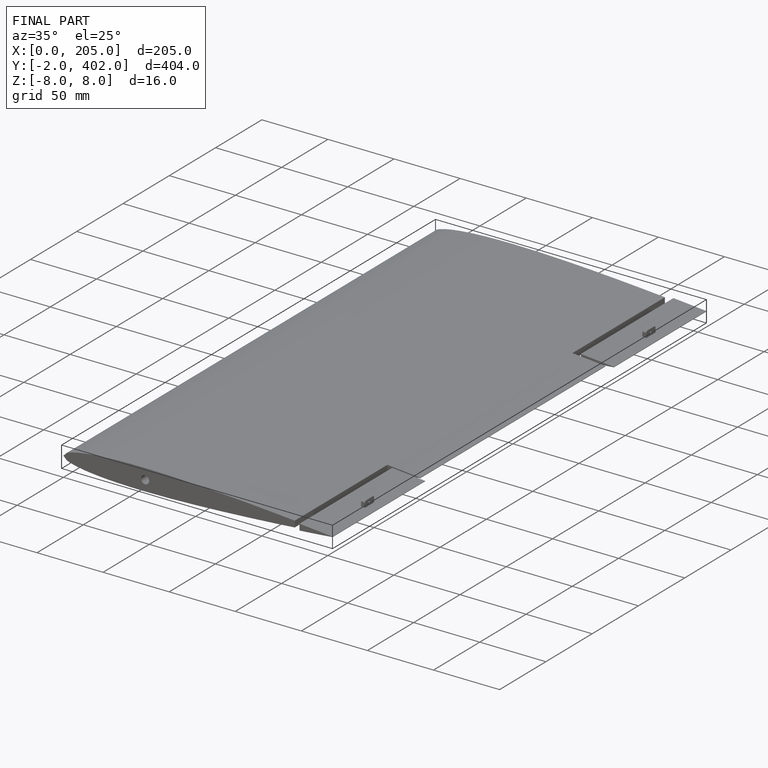
[diagram: finished part — iso view with bounding-box wireframe]
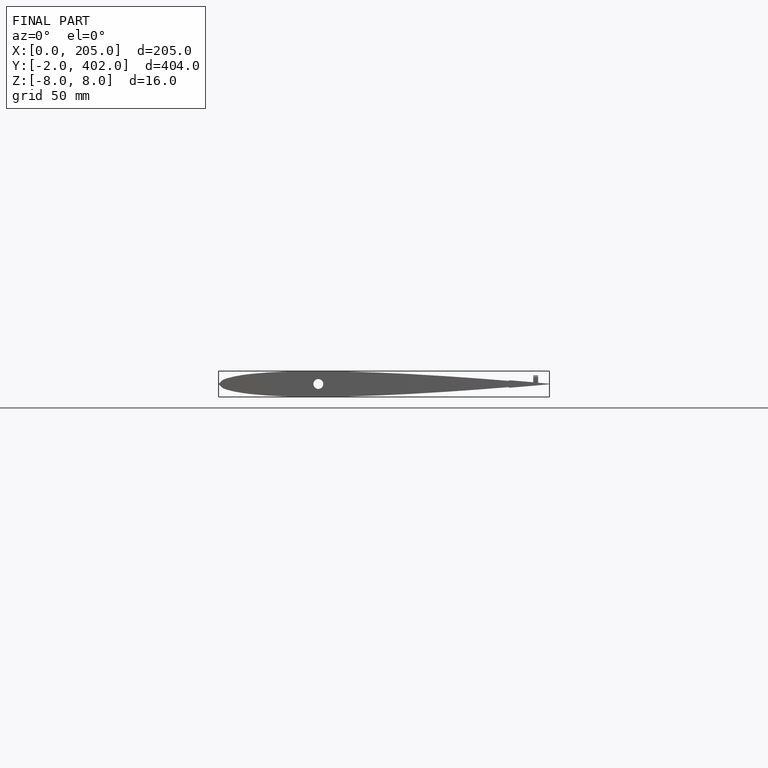
[diagram: finished part — front view with bounding-box wireframe]
